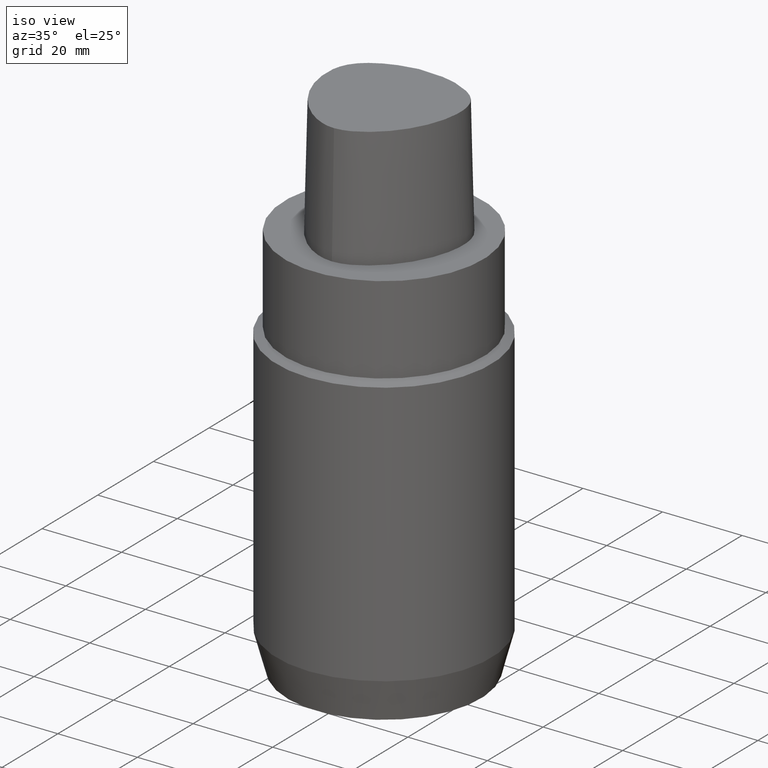
[diagram: clean part render]
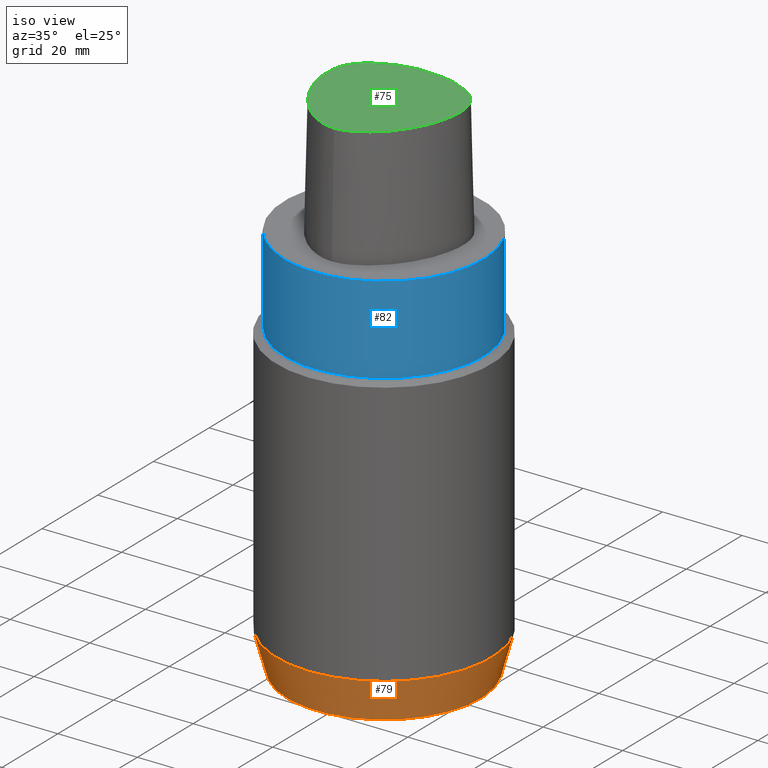
[diagram: same view with three faces highlighted in distinct colors, each labeled with its STEP entity id]
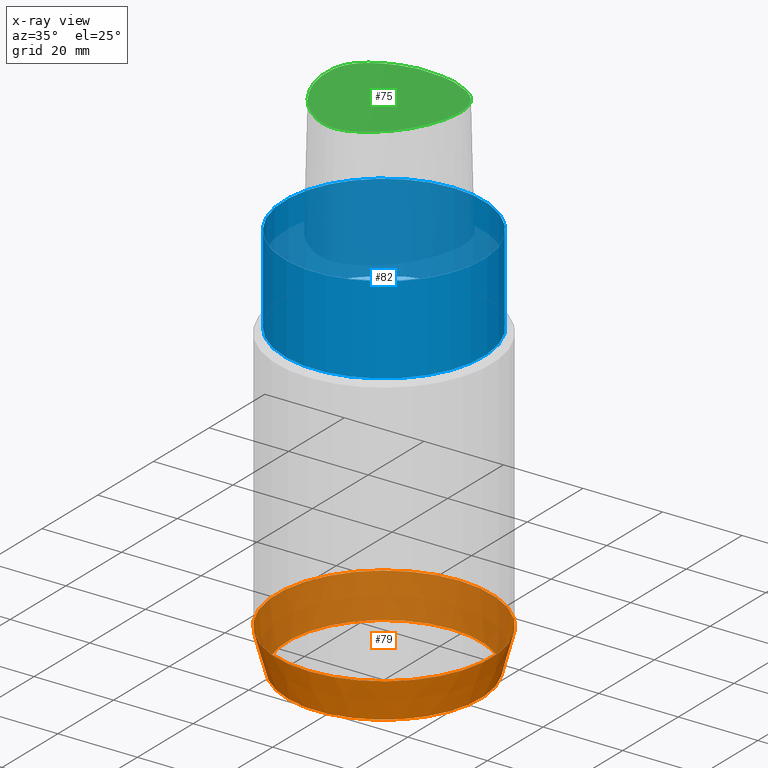
[diagram: x-ray of the same camera — body ghosted, the three highlighted faces saturated]
A machine part, iso view with three faces highlighted in distinct colors.
The next image is the same camera in x-ray (body ghosted, the three faces saturated) — at least one of them is partly hidden behind the body in this view.
Their STEP definitions:

[orange] entity #79 — the highlighted conical surface has half-angle 15 deg.
#79=ADVANCED_FACE('',(#93,#94),#95,.T.);
#93=FACE_BOUND('',#497,.T.);
#94=FACE_BOUND('',#498,.T.);
#95=CONICAL_SURFACE('',#499,25.6602540369655,0.261799387417658);
#497=EDGE_LOOP('',(#526));
#498=EDGE_LOOP('',(#527));
#499=AXIS2_PLACEMENT_3D('',#528,#529,#530);
#526=ORIENTED_EDGE('',*,*,#551,.F.);
#527=ORIENTED_EDGE('',*,*,#550,.T.);
#528=CARTESIAN_POINT('',(5.81707229528189E-015,1.16341445905638E-014,-94.99999998909));
#529=DIRECTION('',(-6.12323399573677E-017,-1.22464679914735E-016,1.0));
#530=DIRECTION('',(-1.23259516440783E-032,1.0,1.22464679914735E-016));
#550=EDGE_CURVE('',#561,#561,#562,.T.);
#551=EDGE_CURVE('',#563,#563,#564,.T.);
#561=VERTEX_POINT('',#722);
#562=CIRCLE('',#723,24.320508073931);
#563=VERTEX_POINT('',#724);
#564=CIRCLE('',#725,27.0);
#722=CARTESIAN_POINT('',(6.12323399573677E-015,24.320508073931,-100.0));
#723=AXIS2_PLACEMENT_3D('',#733,#734,#735);
#724=CARTESIAN_POINT('',(5.51091059482701E-015,27.0,-89.9999999781801));
#725=AXIS2_PLACEMENT_3D('',#736,#737,#738);
#733=CARTESIAN_POINT('',(6.12323399573677E-015,1.22464679914735E-014,-100.0));
#734=DIRECTION('',(-6.12323399573677E-017,-1.22464679914735E-016,1.0));
#735=DIRECTION('',(-1.23259516440783E-032,1.0,1.22464679914735E-016));
#736=CARTESIAN_POINT('',(5.51091059482701E-015,1.1021821189654E-014,-89.9999999781801));
#737=DIRECTION('',(-6.12323399573677E-017,-1.22464679914735E-016,1.0));
#738=DIRECTION('',(-1.23259516440783E-032,1.0,1.22464679914735E-016));

[blue] entity #82 — the highlighted cylindrical surface (bore or boss wall) has radius 24.99 mm, axis along (0, 0, -1).
#82=ADVANCED_FACE('',(#102,#103),#104,.T.);
#102=FACE_BOUND('',#506,.T.);
#103=FACE_BOUND('',#507,.T.);
#104=CYLINDRICAL_SURFACE('',#508,24.99);
#506=EDGE_LOOP('',(#541));
#507=EDGE_LOOP('',(#542));
#508=AXIS2_PLACEMENT_3D('',#543,#544,#545);
#541=ORIENTED_EDGE('',*,*,#549,.F.);
#542=ORIENTED_EDGE('',*,*,#553,.T.);
#543=CARTESIAN_POINT('',(6.76914227751919E-016,1.35382845550384E-015,-11.054848275));
#544=DIRECTION('',(6.12323399573677E-017,1.22464679914735E-016,-1.0));
#545=DIRECTION('',(-1.23259516440783E-032,1.0,1.22464679914735E-016));
#549=EDGE_CURVE('',#559,#559,#560,.T.);
#553=EDGE_CURVE('',#567,#567,#568,.T.);
#559=VERTEX_POINT('',#720);
#560=CIRCLE('',#721,24.99);
#567=VERTEX_POINT('',#728);
#568=CIRCLE('',#729,24.99);
#720=CARTESIAN_POINT('',(-3.08025531585517E-031,24.99,3.06039235106923E-015));
#721=AXIS2_PLACEMENT_3D('',#730,#731,#732);
#728=CARTESIAN_POINT('',(1.35382845550384E-015,24.99,-22.10969655));
#729=AXIS2_PLACEMENT_3D('',#742,#743,#744);
#730=CARTESIAN_POINT('',(0.0,0.0,0.0));
#731=DIRECTION('',(-6.12323399573677E-017,-1.22464679914735E-016,1.0));
#732=DIRECTION('',(-1.23259516440783E-032,1.0,1.22464679914735E-016));
#742=CARTESIAN_POINT('',(1.35382845550384E-015,2.70765691100768E-015,-22.10969655));
#743=DIRECTION('',(-6.12323399573677E-017,-1.22464679914735E-016,1.0));
#744=DIRECTION('',(-1.23259516440783E-032,1.0,1.22464679914735E-016));

[green] entity #75 — the highlighted planar face has unit normal (-0, 0, 1).
#75=ADVANCED_FACE('',(#84),#85,.T.);
#84=FACE_OUTER_BOUND('',#105,.T.);
#85=PLANE('',#106);
#105=EDGE_LOOP('',(#509));
#106=AXIS2_PLACEMENT_3D('',#510,#511,#512);
#509=ORIENTED_EDGE('',*,*,#546,.F.);
#510=CARTESIAN_POINT('',(-0.000657534264248203,-1.65575572608802,30.0));
#511=DIRECTION('',(-0.0,2.95577857036584E-049,1.0));
#512=DIRECTION('',(1.0,0.0,0.0));
#546=EDGE_CURVE('',#554,#554,#555,.T.);
#554=VERTEX_POINT('',#569);
#555=B_SPLINE_CURVE_WITH_KNOTS('',3,(#570,#571,#572,#573,#574,#575,#576,#577,#578,#579,#580,#581,#582,#583,#584,#585,#586,#587,#588,#589,#590,#591,#592,#593,#594,#595,#596,#597,#598,#599,#600,#601,#602,#603,#604,#605,#606,#607,#608,#609,#610,#611,#612,#613,#614,#615,#616,#617,#618),.UNSPECIFIED.,.T.,.F.,(4,1,1,1,1,1,1,1,1,1,1,1,1,1,1,1,1,1,1,1,1,1,1,1,1,1,1,1,1,1,1,1,1,1,1,1,1,1,1,1,1,1,1,1,1,1,4),(0.0,0.023135829350767,0.046149078767971,0.068686553945372,0.09058948843834,0.11187442371895,0.132659030725504,0.153111474090064,0.173428097006866,0.193812703683075,0.214465113334926,0.235566638619369,0.257256396596226,0.279590584305387,0.302476275092963,0.325611612149197,0.348735785989546,0.371826971229282,0.39455923139207,0.416669726533691,0.438154204641074,0.459103554741756,0.479643077908811,0.50010643098029,0.520399705216369,0.54092682403315,0.561890845659905,0.583370991138857,0.605476574502583,0.62820876493626,0.65131550684809,0.674427687768046,0.697531018602722,0.720425222070344,0.742763449220249,0.764449723968905,0.785551037463572,0.806204240231889,0.826588983931571,0.846905402970388,0.867357715119018,0.88814171778586,0.909429413217286,0.931324749020081,0.953885589892717,0.976862732393428,1.0),.UNSPECIFIED.);
#569=CARTESIAN_POINT('',(-2.78602932413959E-015,-17.9423775546504,30.0));
#570=CARTESIAN_POINT('',(-2.78602932413959E-015,-17.9423775546504,30.0));
#571=CARTESIAN_POINT('',(-0.814120797978075,-17.9643878187761,30.0));
#572=CARTESIAN_POINT('',(-2.44279318309434,-17.6670056599032,30.0));
#573=CARTESIAN_POINT('',(-4.69065600148019,-16.7591312239375,30.0));
#574=CARTESIAN_POINT('',(-6.73157621234646,-15.527654017863,30.0));
#575=CARTESIAN_POINT('',(-8.55606567082544,-14.0980586872352,30.0));
#576=CARTESIAN_POINT('',(-10.1771160862307,-12.5294920614813,30.0));
#577=CARTESIAN_POINT('',(-11.6098311271326,-10.8549672983455,30.0));
#578=CARTESIAN_POINT('',(-12.8723444784573,-9.09084166630711,30.0));
#579=CARTESIAN_POINT('',(-13.9762474627415,-7.23982146073079,30.0));
#580=CARTESIAN_POINT('',(-14.9241349859217,-5.29636298798721,30.0));
#581=CARTESIAN_POINT('',(-15.7132736469777,-3.2533357158659,30.0));
#582=CARTESIAN_POINT('',(-16.3266313043064,-1.10238675181427,30.0));
#583=CARTESIAN_POINT('',(-16.7327867713303,1.15808256309649,30.0));
#584=CARTESIAN_POINT('',(-16.8801613787167,3.51564121263174,30.0));
#585=CARTESIAN_POINT('',(-16.6855836228514,5.92229128835704,30.0));
#586=CARTESIAN_POINT('',(-16.0281509658443,8.29517868854449,30.0));
#587=CARTESIAN_POINT('',(-14.6640408300166,10.3669104243273,30.0));
#588=CARTESIAN_POINT('',(-12.8332969997264,11.9882678763451,30.0));
#589=CARTESIAN_POINT('',(-10.7856401290832,13.2404482750702,30.0));
#590=CARTESIAN_POINT('',(-8.65298741417579,14.19764142693,30.0));
#591=CARTESIAN_POINT('',(-6.48957622042645,14.9235651413533,30.0));
#592=CARTESIAN_POINT('',(-4.30784954842127,15.2925809723717,30.0));
#593=CARTESIAN_POINT('',(-2.16867899857279,15.8525920055235,30.0));
#594=CARTESIAN_POINT('',(-0.0054980597270801,15.506533819507,30.0));
#595=CARTESIAN_POINT('',(2.15423811148254,15.6758925558313,30.0));
#596=CARTESIAN_POINT('',(4.31367631773855,15.3366483013887,30.0));
#597=CARTESIAN_POINT('',(6.49156913463884,14.9221231752341,30.0));
#598=CARTESIAN_POINT('',(8.65317555043793,14.199841033848,30.0));
#599=CARTESIAN_POINT('',(10.7855591317115,13.2388028674922,30.0));
#600=CARTESIAN_POINT('',(12.8289446834375,11.9844078416963,30.0));
#601=CARTESIAN_POINT('',(14.6809214389867,10.37934328945,30.0));
#602=CARTESIAN_POINT('',(15.9964040236072,8.28000660116028,30.0));
#603=CARTESIAN_POINT('',(16.6999197177274,5.92601467018833,30.0));
#604=CARTESIAN_POINT('',(16.8785470495877,3.51485696104406,30.0));
#605=CARTESIAN_POINT('',(16.7308989568545,1.15864914401017,30.0));
#606=CARTESIAN_POINT('',(16.3270119409732,-1.10262794482627,30.0));
#607=CARTESIAN_POINT('',(15.7138840293007,-3.25349612648562,30.0));
#608=CARTESIAN_POINT('',(14.9244427410538,-5.29647704660135,30.0));
#609=CARTESIAN_POINT('',(13.9756636589241,-7.23950698099948,30.0));
#610=CARTESIAN_POINT('',(12.8724663956831,-9.09088034657936,30.0));
#611=CARTESIAN_POINT('',(11.6099597844916,-10.8551381410581,30.0));
#612=CARTESIAN_POINT('',(10.1759690661341,-12.5282962499649,30.0));
#613=CARTESIAN_POINT('',(8.55887653552809,-14.1013446755591,30.0));
#614=CARTESIAN_POINT('',(6.72595297076831,-15.5205541881092,30.0));
#615=CARTESIAN_POINT('',(4.69995925068727,-16.7729025475684,30.0));
#616=CARTESIAN_POINT('',(2.43523789305481,-17.660279021922,30.0));
#617=CARTESIAN_POINT('',(0.814171408394767,-17.9203659222405,30.0));
#618=CARTESIAN_POINT('',(-2.83508942413959E-015,-17.9423775546504,30.0));